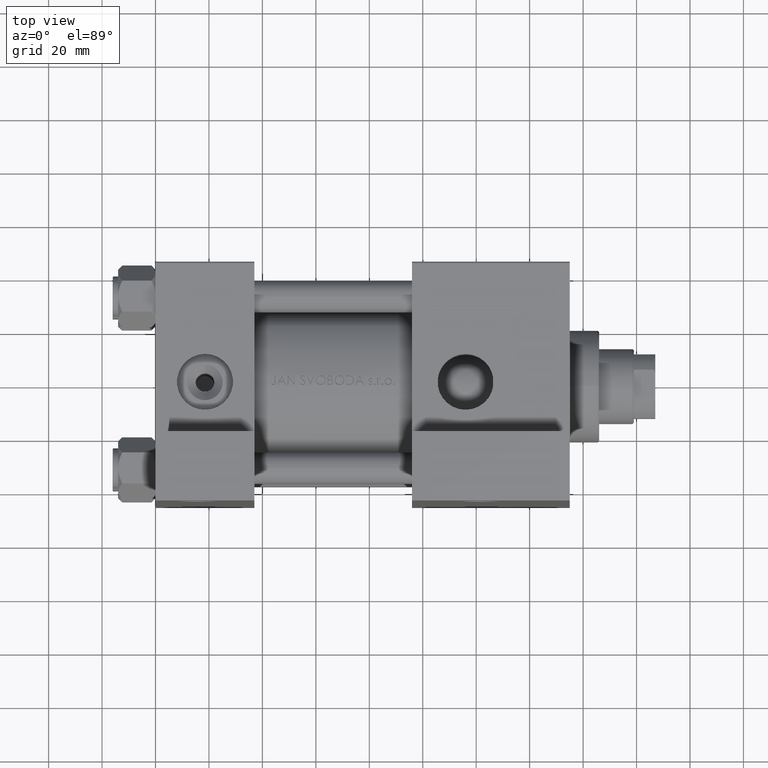
[diagram: clean part render]
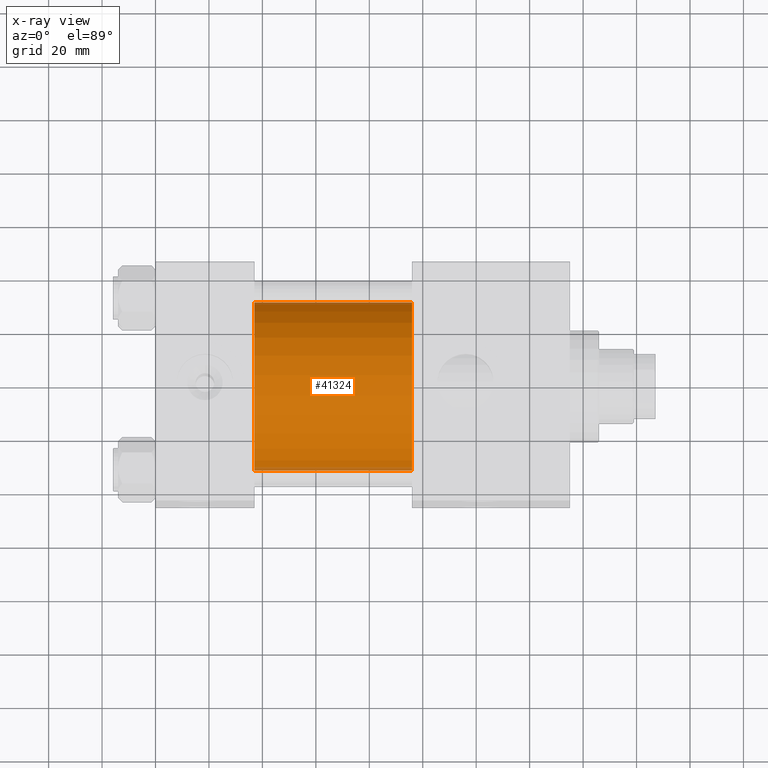
[diagram: x-ray — body ghosted, one internal face saturated and labeled with its STEP entity id]
A machine part, top view, then the same camera in x-ray: the body is ghosted and one INTERNAL B-rep face — a face not visible from any outside direction — is saturated and labeled: STEP entity #41324.
In plain terms, the highlighted cylindrical surface (partial cylindrical patch) has radius 31.5 mm, axis along (-1, -0, 0).
Its self-contained STEP definition (entity closure, byte-faithful):
#770 = DIRECTION ( 'NONE',  ( -1.000000000000000000, -0.000000000000000000, -0.000000000000000000 ) ) ;
#1993 = ORIENTED_EDGE ( 'NONE', *, *, #20253, .F. ) ;
#2240 = VERTEX_POINT ( 'NONE', #35905 ) ;
#8072 = FACE_OUTER_BOUND ( 'NONE', #35763, .T. ) ;
#8154 = CIRCLE ( 'NONE', #22623, 31.50000000000000000 ) ;
#9692 = VECTOR ( 'NONE', #44901, 1000.000000000000000 ) ;
#10071 = EDGE_CURVE ( 'NONE', #47566, #12567, #8154, .T. ) ;
#10498 = CARTESIAN_POINT ( 'NONE',  ( 96.00000000000000000, 3.857637417314162689E-15, -32.50000000000000711 ) ) ;
#12567 = VERTEX_POINT ( 'NONE', #39022 ) ;
#12568 = CYLINDRICAL_SURFACE ( 'NONE', #47159, 31.50000000000000000 ) ;
#13295 = ORIENTED_EDGE ( 'NONE', *, *, #45412, .F. ) ;
#15763 = LINE ( 'NONE', #31075, #21108 ) ;
#16347 = CARTESIAN_POINT ( 'NONE',  ( 96.00000000000000000, 0.000000000000000000, -1.000000000000007772 ) ) ;
#16750 = EDGE_CURVE ( 'NONE', #12567, #2240, #30755, .T. ) ;
#18077 = DIRECTION ( 'NONE',  ( 0.000000000000000000, 0.000000000000000000, -1.000000000000000000 ) ) ;
#19258 = CARTESIAN_POINT ( 'NONE',  ( 96.00000000000000000, 0.000000000000000000, 30.49999999999999289 ) ) ;
#19861 = DIRECTION ( 'NONE',  ( 0.000000000000000000, 0.000000000000000000, 1.000000000000000000 ) ) ;
#20253 = EDGE_CURVE ( 'NONE', #47566, #39864, #15763, .T. ) ;
#21108 = VECTOR ( 'NONE', #46380, 1000.000000000000000 ) ;
#22623 = AXIS2_PLACEMENT_3D ( 'NONE', #47202, #28143, #28889 ) ;
#28143 = DIRECTION ( 'NONE',  ( 1.000000000000000000, 0.000000000000000000, 0.000000000000000000 ) ) ;
#28889 = DIRECTION ( 'NONE',  ( 0.000000000000000000, 0.000000000000000000, -1.000000000000000000 ) ) ;
#29886 = CARTESIAN_POINT ( 'NONE',  ( 37.00000000000000000, 0.000000000000000000, -1.000000000000007772 ) ) ;
#29937 = ORIENTED_EDGE ( 'NONE', *, *, #16750, .T. ) ;
#30128 = DIRECTION ( 'NONE',  ( 1.000000000000000000, 0.000000000000000000, 0.000000000000000000 ) ) ;
#30755 = LINE ( 'NONE', #10498, #9692 ) ;
#31075 = CARTESIAN_POINT ( 'NONE',  ( 96.00000000000000000, 0.000000000000000000, 30.49999999999999289 ) ) ;
#32766 = AXIS2_PLACEMENT_3D ( 'NONE', #29886, #30128, #18077 ) ;
#35763 = EDGE_LOOP ( 'NONE', ( #41848, #29937, #13295, #1993 ) ) ;
#35905 = CARTESIAN_POINT ( 'NONE',  ( 37.00000000000000000, 3.857637417314162689E-15, -32.50000000000000711 ) ) ;
#38813 = CARTESIAN_POINT ( 'NONE',  ( 37.00000000000000000, 0.000000000000000000, 30.49999999999999289 ) ) ;
#39022 = CARTESIAN_POINT ( 'NONE',  ( 96.00000000000000000, 3.857637417314162689E-15, -32.50000000000000711 ) ) ;
#39864 = VERTEX_POINT ( 'NONE', #38813 ) ;
#41324 = ADVANCED_FACE ( 'NONE', ( #8072 ), #12568, .F. ) ;
#41848 = ORIENTED_EDGE ( 'NONE', *, *, #10071, .T. ) ;
#44901 = DIRECTION ( 'NONE',  ( -1.000000000000000000, -0.000000000000000000, -0.000000000000000000 ) ) ;
#45412 = EDGE_CURVE ( 'NONE', #39864, #2240, #46374, .T. ) ;
#46374 = CIRCLE ( 'NONE', #32766, 31.50000000000000000 ) ;
#46380 = DIRECTION ( 'NONE',  ( -1.000000000000000000, -0.000000000000000000, -0.000000000000000000 ) ) ;
#47159 = AXIS2_PLACEMENT_3D ( 'NONE', #16347, #770, #19861 ) ;
#47202 = CARTESIAN_POINT ( 'NONE',  ( 96.00000000000000000, 0.000000000000000000, -1.000000000000007772 ) ) ;
#47566 = VERTEX_POINT ( 'NONE', #19258 ) ;